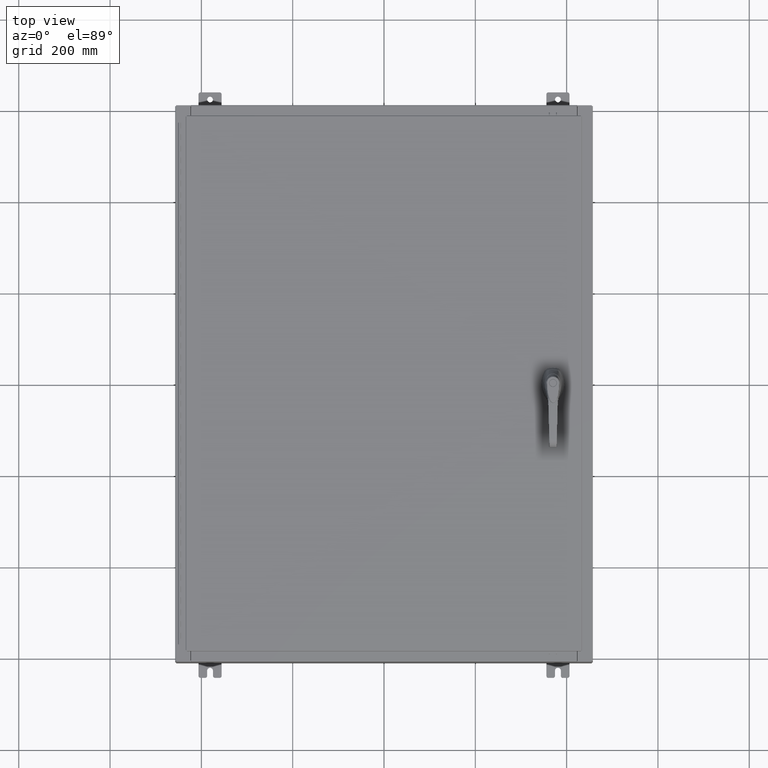
[diagram: clean part render]
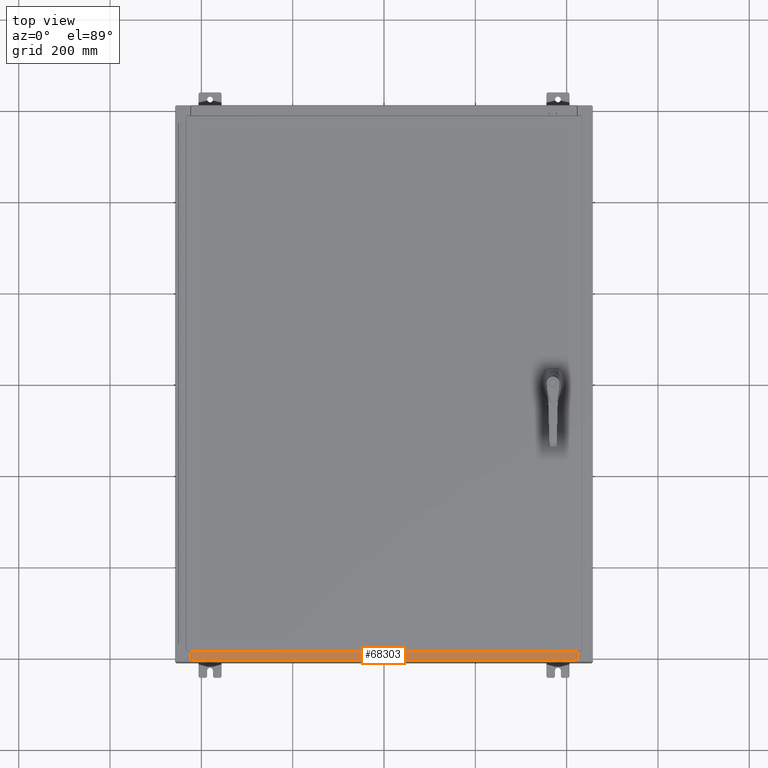
[diagram: same view with one face highlighted and labeled with its STEP entity id]
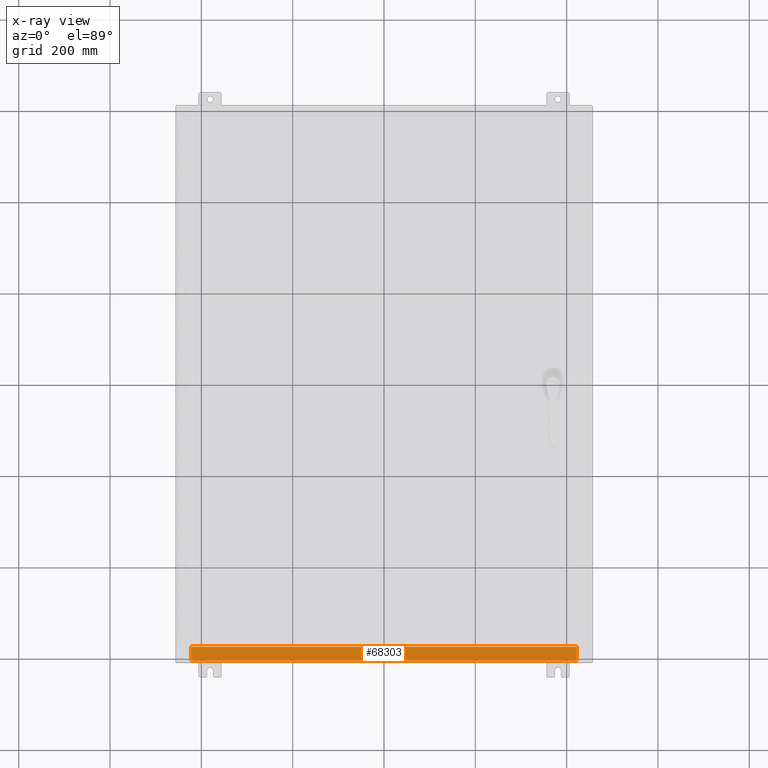
[diagram: x-ray of the same camera — body ghosted, the highlighted face saturated]
A machine part, top view. The second image highlights one B-rep face of the part: STEP entity #68303.
The next image is the same camera in x-ray: the body ghosted, the highlighted face saturated — about 0% of this face is hidden behind the body in this view.
In plain terms, the highlighted planar face has unit normal (-0, -0, 1).
Its self-contained STEP definition (entity closure, byte-faithful):
#8409 = AXIS2_PLACEMENT_3D ( 'NONE', #99806, #121103, #59059 ) ;
#9602 = CARTESIAN_POINT ( 'NONE',  ( -16.63719999999999600, -1.287299999999999200, 4.000000000000004400 ) ) ;
#13255 = LINE ( 'NONE', #86165, #37655 ) ;
#15412 = ORIENTED_EDGE ( 'NONE', *, *, #41941, .F. ) ;
#23785 = LINE ( 'NONE', #85747, #51447 ) ;
#33487 = EDGE_LOOP ( 'NONE', ( #15412, #80517, #66991, #39006 ) ) ;
#37655 = VECTOR ( 'NONE', #96550, 39.37007874015748100 ) ;
#38907 = EDGE_CURVE ( 'NONE', #89181, #124861, #23785, .T. ) ;
#39006 = ORIENTED_EDGE ( 'NONE', *, *, #103614, .T. ) ;
#41941 = EDGE_CURVE ( 'NONE', #124861, #80210, #79965, .T. ) ;
#45563 = CARTESIAN_POINT ( 'NONE',  ( 16.63720000000000700, -0.08769999999999937600, 4.000000000000000900 ) ) ;
#48246 = VERTEX_POINT ( 'NONE', #45563 ) ;
#51447 = VECTOR ( 'NONE', #127369, 39.37007874015748100 ) ;
#52346 = VECTOR ( 'NONE', #97293, 39.37007874015748100 ) ;
#54652 = CARTESIAN_POINT ( 'NONE',  ( -2.880088825576348200E-018, -0.08769999999999972300, 4.000000000000000900 ) ) ;
#59059 = DIRECTION ( 'NONE',  ( 0.0000000000000000000, -1.000000000000000000, 3.566381192773190000E-015 ) ) ;
#66991 = ORIENTED_EDGE ( 'NONE', *, *, #112425, .F. ) ;
#68303 = ADVANCED_FACE ( 'NONE', ( #70259 ), #110677, .T. ) ;
#70259 = FACE_OUTER_BOUND ( 'NONE', #33487, .T. ) ;
#79965 = LINE ( 'NONE', #107262, #52346 ) ;
#80210 = VERTEX_POINT ( 'NONE', #133368 ) ;
#80517 = ORIENTED_EDGE ( 'NONE', *, *, #38907, .F. ) ;
#85747 = CARTESIAN_POINT ( 'NONE',  ( 16.63720000000000700, -1.287299999999999900, 4.000000000000004400 ) ) ;
#86165 = CARTESIAN_POINT ( 'NONE',  ( 16.63720000000000400, -1.300299999999999800, 4.000000000000004400 ) ) ;
#89181 = VERTEX_POINT ( 'NONE', #119993 ) ;
#96550 = DIRECTION ( 'NONE',  ( -0.0000000000000000000, -1.000000000000000000, 3.566381192773190000E-015 ) ) ;
#97293 = DIRECTION ( 'NONE',  ( -0.0000000000000000000, 1.000000000000000000, -3.566381192773190000E-015 ) ) ;
#99608 = LINE ( 'NONE', #54652, #102879 ) ;
#99806 = CARTESIAN_POINT ( 'NONE',  ( 0.0000000000000000000, 1.425992975200418500E-014, 4.000000000000000900 ) ) ;
#102879 = VECTOR ( 'NONE', #127090, 39.37007874015748100 ) ;
#103614 = EDGE_CURVE ( 'NONE', #48246, #80210, #99608, .T. ) ;
#107262 = CARTESIAN_POINT ( 'NONE',  ( -16.63719999999999600, -0.07469999999999973900, 4.000000000000000900 ) ) ;
#110677 = PLANE ( 'NONE',  #8409 ) ;
#112425 = EDGE_CURVE ( 'NONE', #48246, #89181, #13255, .T. ) ;
#119993 = CARTESIAN_POINT ( 'NONE',  ( 16.63720000000000400, -1.287299999999999900, 4.000000000000004400 ) ) ;
#121103 = DIRECTION ( 'NONE',  ( 0.0000000000000000000, 3.566381192773190000E-015, 1.000000000000000000 ) ) ;
#124861 = VERTEX_POINT ( 'NONE', #9602 ) ;
#127090 = DIRECTION ( 'NONE',  ( -1.000000000000000000, 3.284023746380717400E-017, -1.171208052571274300E-031 ) ) ;
#127369 = DIRECTION ( 'NONE',  ( -1.000000000000000000, 0.0000000000000000000, 0.0000000000000000000 ) ) ;
#133368 = CARTESIAN_POINT ( 'NONE',  ( -16.63719999999999600, -0.08769999999999972300, 4.000000000000000900 ) ) ;